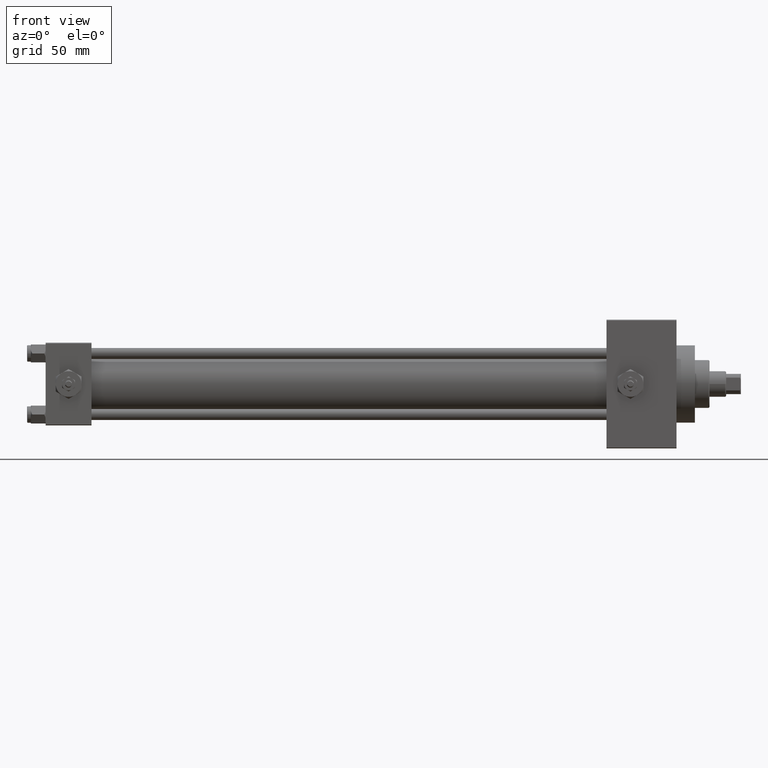
[diagram: clean part render]
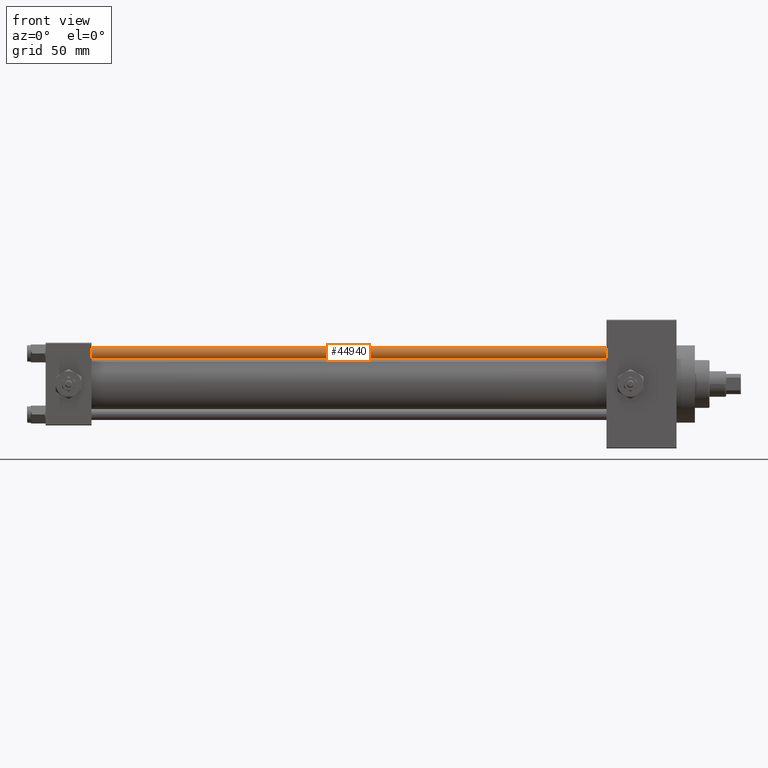
[diagram: same view with one face highlighted and labeled with its STEP entity id]
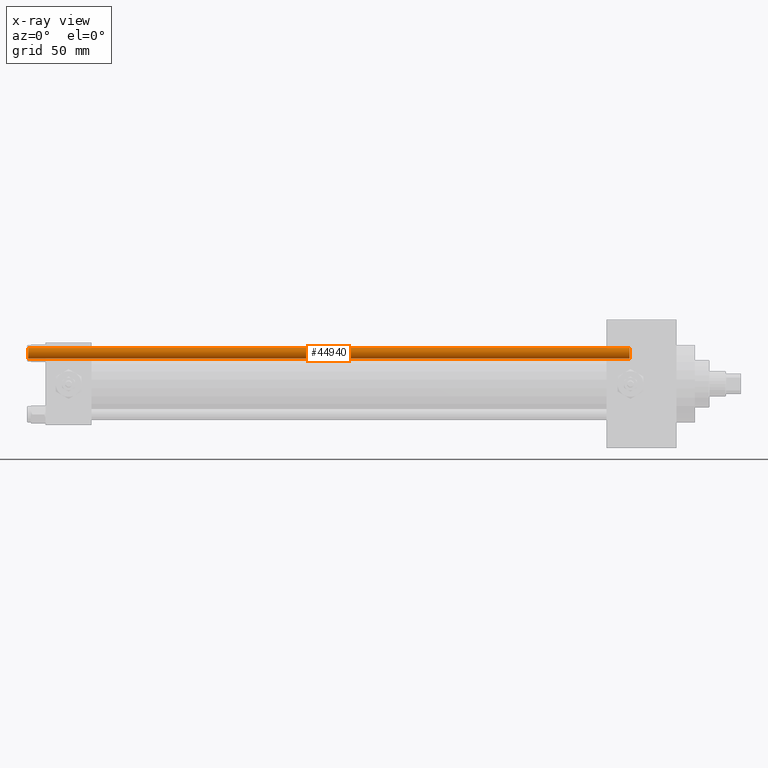
[diagram: x-ray of the same camera — body ghosted, the highlighted face saturated]
A machine part, front view. The second image highlights one B-rep face of the part: STEP entity #44940.
The next image is the same camera in x-ray: the body ghosted, the highlighted face saturated — about 0% of this face is hidden behind the body in this view.
In plain terms, the highlighted cylindrical surface (edge-blend (fillet) strip) has radius 3 mm, axis along (1, 0, 0).
Its self-contained STEP definition (entity closure, byte-faithful):
#114 = VERTEX_POINT ( 'NONE', #16299 ) ;
#2787 = VECTOR ( 'NONE', #18599, 1000.000000000000000 ) ;
#5227 = LINE ( 'NONE', #28382, #16592 ) ;
#9250 = AXIS2_PLACEMENT_3D ( 'NONE', #14523, #37207, #14029 ) ;
#12913 = DIRECTION ( 'NONE',  ( -0.000000000000000000, -0.000000000000000000, 1.000000000000000000 ) ) ;
#13173 = EDGE_CURVE ( 'NONE', #26047, #114, #32306, .T. ) ;
#13691 = ORIENTED_EDGE ( 'NONE', *, *, #13173, .T. ) ;
#13890 = CARTESIAN_POINT ( 'NONE',  ( 0.000000000000000000, 0.000000000000000000, 0.5000000000000559552 ) ) ;
#14029 = DIRECTION ( 'NONE',  ( 1.000000000000000000, 0.000000000000000000, 0.000000000000000000 ) ) ;
#14523 = CARTESIAN_POINT ( 'NONE',  ( 0.000000000000000000, 0.000000000000000000, 327.5000000000000000 ) ) ;
#14861 = CARTESIAN_POINT ( 'NONE',  ( -3.000000000000000444, 0.000000000000000000, 328.0000000000000000 ) ) ;
#15295 = CARTESIAN_POINT ( 'NONE',  ( -3.000000000000000444, 0.000000000000000000, 327.5000000000000000 ) ) ;
#16299 = CARTESIAN_POINT ( 'NONE',  ( 3.000000000000000444, 3.673940397442060361E-16, 327.5000000000000000 ) ) ;
#16592 = VECTOR ( 'NONE', #21157, 1000.000000000000000 ) ;
#17140 = CIRCLE ( 'NONE', #22704, 3.000000000000000444 ) ;
#17634 = CARTESIAN_POINT ( 'NONE',  ( 0.000000000000000000, 0.000000000000000000, 328.0000000000000000 ) ) ;
#17795 = ORIENTED_EDGE ( 'NONE', *, *, #48377, .T. ) ;
#18599 = DIRECTION ( 'NONE',  ( -0.000000000000000000, -0.000000000000000000, -1.000000000000000000 ) ) ;
#21157 = DIRECTION ( 'NONE',  ( -0.000000000000000000, -0.000000000000000000, -1.000000000000000000 ) ) ;
#22704 = AXIS2_PLACEMENT_3D ( 'NONE', #13890, #12913, #47552 ) ;
#26047 = VERTEX_POINT ( 'NONE', #15295 ) ;
#26310 = LINE ( 'NONE', #14861, #2787 ) ;
#28382 = CARTESIAN_POINT ( 'NONE',  ( 3.000000000000000444, 3.673940397442060361E-16, 328.0000000000000000 ) ) ;
#29094 = FACE_OUTER_BOUND ( 'NONE', #35300, .T. ) ;
#30084 = CYLINDRICAL_SURFACE ( 'NONE', #35652, 3.000000000000000444 ) ;
#30457 = VERTEX_POINT ( 'NONE', #36317 ) ;
#32306 = CIRCLE ( 'NONE', #9250, 3.000000000000000444 ) ;
#33819 = DIRECTION ( 'NONE',  ( -1.000000000000000000, 0.000000000000000000, 0.000000000000000000 ) ) ;
#35130 = EDGE_CURVE ( 'NONE', #26047, #30457, #26310, .T. ) ;
#35300 = EDGE_LOOP ( 'NONE', ( #13691, #17795, #42544, #43284 ) ) ;
#35652 = AXIS2_PLACEMENT_3D ( 'NONE', #17634, #44312, #33819 ) ;
#36317 = CARTESIAN_POINT ( 'NONE',  ( -3.000000000000000444, 0.000000000000000000, 0.5000000000000559552 ) ) ;
#37207 = DIRECTION ( 'NONE',  ( 0.000000000000000000, 0.000000000000000000, -1.000000000000000000 ) ) ;
#40065 = EDGE_CURVE ( 'NONE', #43184, #30457, #17140, .T. ) ;
#42507 = CARTESIAN_POINT ( 'NONE',  ( 3.000000000000000444, 3.673940397442060361E-16, 0.5000000000000559552 ) ) ;
#42544 = ORIENTED_EDGE ( 'NONE', *, *, #40065, .T. ) ;
#43184 = VERTEX_POINT ( 'NONE', #42507 ) ;
#43284 = ORIENTED_EDGE ( 'NONE', *, *, #35130, .F. ) ;
#44312 = DIRECTION ( 'NONE',  ( -0.000000000000000000, -0.000000000000000000, -1.000000000000000000 ) ) ;
#44940 = ADVANCED_FACE ( 'NONE', ( #29094 ), #30084, .T. ) ;
#47552 = DIRECTION ( 'NONE',  ( 1.000000000000000000, 0.000000000000000000, 0.000000000000000000 ) ) ;
#48377 = EDGE_CURVE ( 'NONE', #114, #43184, #5227, .T. ) ;